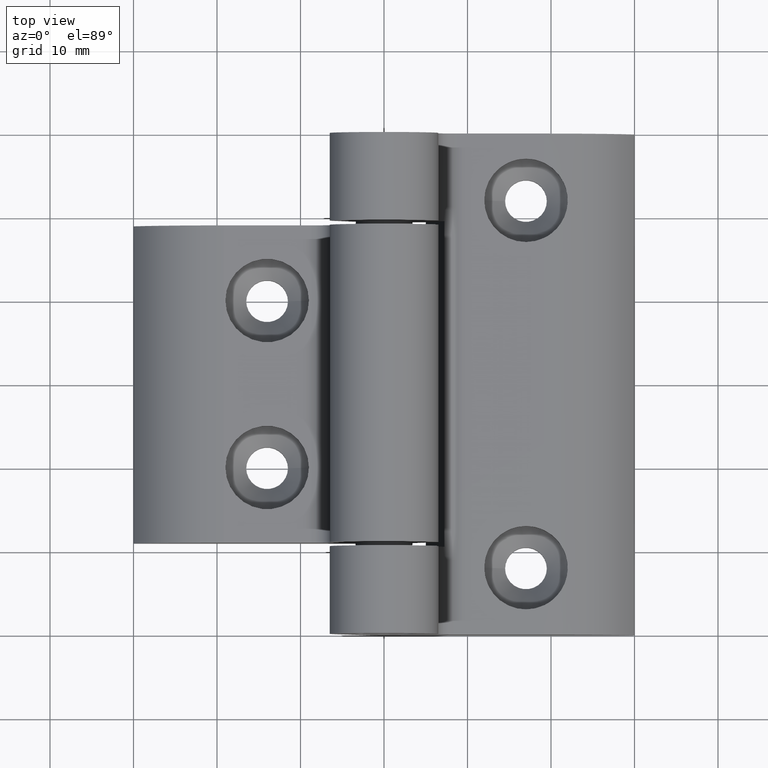
[diagram: clean part render]
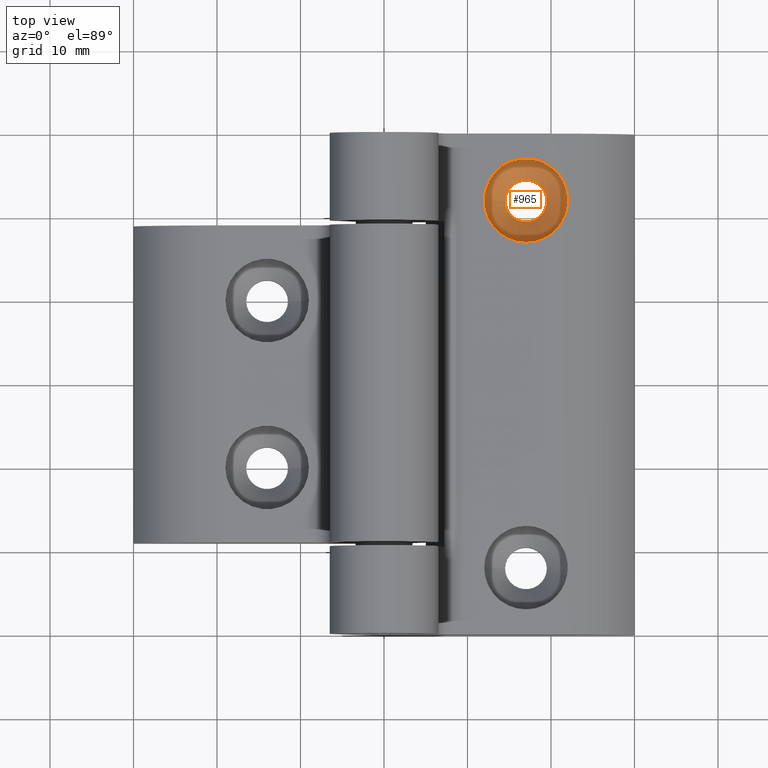
[diagram: same view with one face highlighted and labeled with its STEP entity id]
A machine part, top view. The second image highlights one B-rep face of the part: STEP entity #965.
In plain terms, the highlighted conical surface has half-angle 45 deg.
Its self-contained STEP definition (entity closure, byte-faithful):
#106=FACE_OUTER_BOUND('',#155,.T.);
#155=EDGE_LOOP('',(#667,#668,#669,#670,#671,#672));
#216=LINE('',#1532,#285);
#285=VECTOR('',#1228,3.75);
#354=CIRCLE('',#1105,5.);
#355=CIRCLE('',#1106,2.5);
#356=CIRCLE('',#1107,2.5);
#357=CIRCLE('',#1108,5.);
#418=VERTEX_POINT('',#1528);
#419=VERTEX_POINT('',#1529);
#420=VERTEX_POINT('',#1531);
#421=VERTEX_POINT('',#1533);
#520=EDGE_CURVE('',#418,#419,#354,.T.);
#521=EDGE_CURVE('',#419,#420,#216,.T.);
#522=EDGE_CURVE('',#421,#420,#355,.T.);
#523=EDGE_CURVE('',#420,#421,#356,.T.);
#524=EDGE_CURVE('',#419,#418,#357,.T.);
#667=ORIENTED_EDGE('',*,*,#520,.T.);
#668=ORIENTED_EDGE('',*,*,#521,.T.);
#669=ORIENTED_EDGE('',*,*,#522,.F.);
#670=ORIENTED_EDGE('',*,*,#523,.F.);
#671=ORIENTED_EDGE('',*,*,#521,.F.);
#672=ORIENTED_EDGE('',*,*,#524,.T.);
#961=CONICAL_SURFACE('',#1104,3.75,0.785398163397448);
#965=ADVANCED_FACE('',(#106),#961,.F.);
#1104=AXIS2_PLACEMENT_3D('',#1527,#1224,#1225);
#1105=AXIS2_PLACEMENT_3D('',#1530,#1226,#1227);
#1106=AXIS2_PLACEMENT_3D('',#1534,#1229,#1230);
#1107=AXIS2_PLACEMENT_3D('',#1535,#1231,#1232);
#1108=AXIS2_PLACEMENT_3D('',#1536,#1233,#1234);
#1224=DIRECTION('center_axis',(2.13294600378817E-16,0.,1.));
#1225=DIRECTION('ref_axis',(1.,0.,-2.13294600378818E-16));
#1226=DIRECTION('center_axis',(2.13294600378817E-16,0.,1.));
#1227=DIRECTION('ref_axis',(1.,0.,-2.13294600378817E-16));
#1228=DIRECTION('',(0.707106781186547,8.65956056235493E-17,-0.707106781186548));
#1229=DIRECTION('center_axis',(2.13294600378817E-16,0.,1.));
#1230=DIRECTION('ref_axis',(1.,0.,-2.13294600378817E-16));
#1231=DIRECTION('center_axis',(2.13294600378817E-16,0.,1.));
#1232=DIRECTION('ref_axis',(1.,0.,-2.13294600378817E-16));
#1233=DIRECTION('center_axis',(2.13294600378817E-16,0.,1.));
#1234=DIRECTION('ref_axis',(1.,0.,-2.13294600378817E-16));
#1527=CARTESIAN_POINT('Origin',(17.,22.,-7.75));
#1528=CARTESIAN_POINT('',(22.,22.,-6.5));
#1529=CARTESIAN_POINT('',(12.,22.,-6.5));
#1530=CARTESIAN_POINT('Origin',(17.,22.,-6.5));
#1531=CARTESIAN_POINT('',(14.5,22.,-9.));
#1532=CARTESIAN_POINT('',(13.25,22.,-7.75));
#1533=CARTESIAN_POINT('',(19.5,22.,-9.00000000000001));
#1534=CARTESIAN_POINT('Origin',(17.,22.,-9.));
#1535=CARTESIAN_POINT('Origin',(17.,22.,-9.));
#1536=CARTESIAN_POINT('Origin',(17.,22.,-6.5));